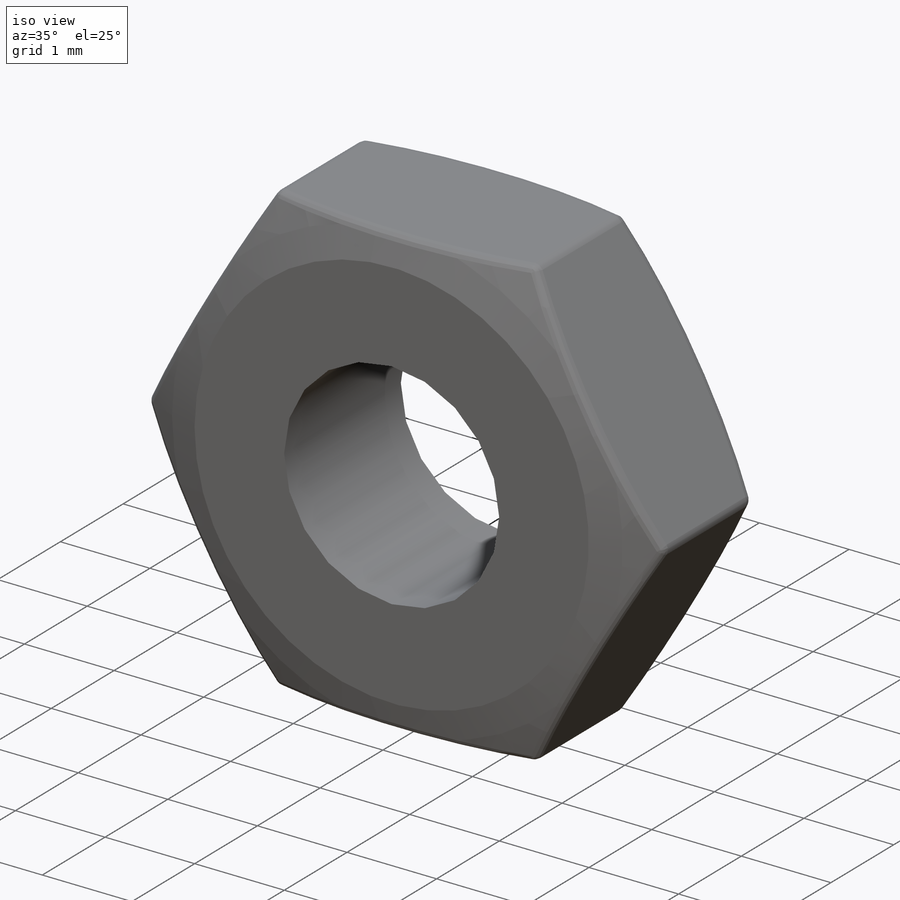
[diagram: iso view]
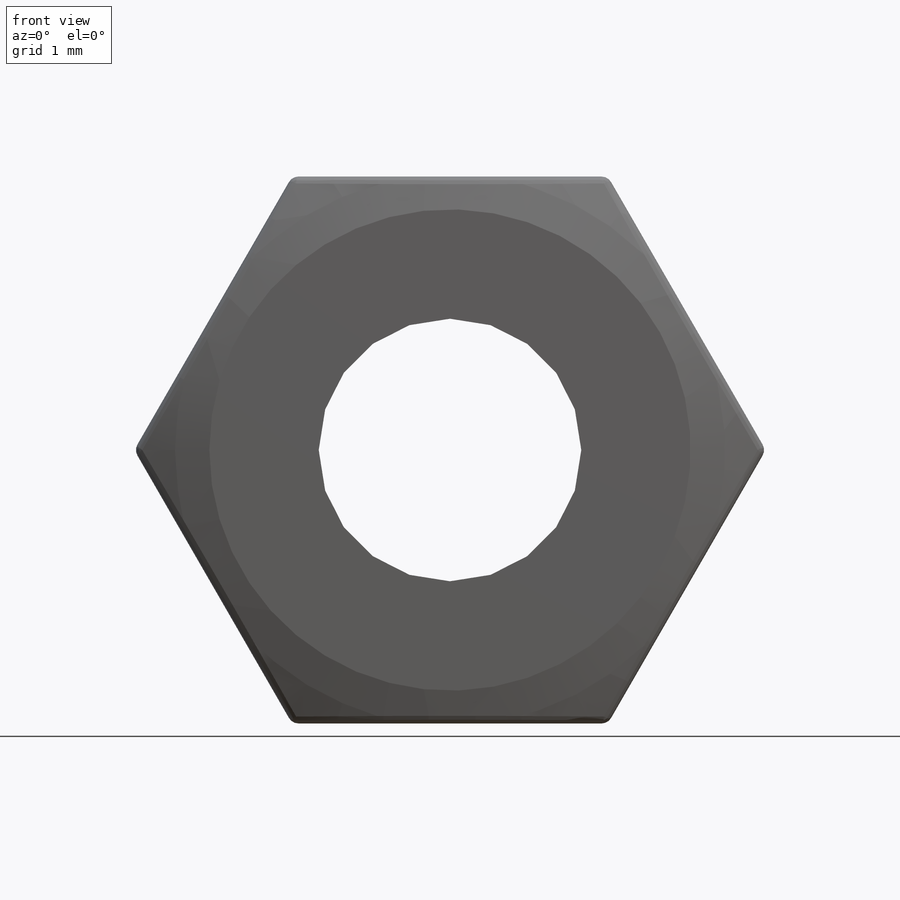
[diagram: front view]
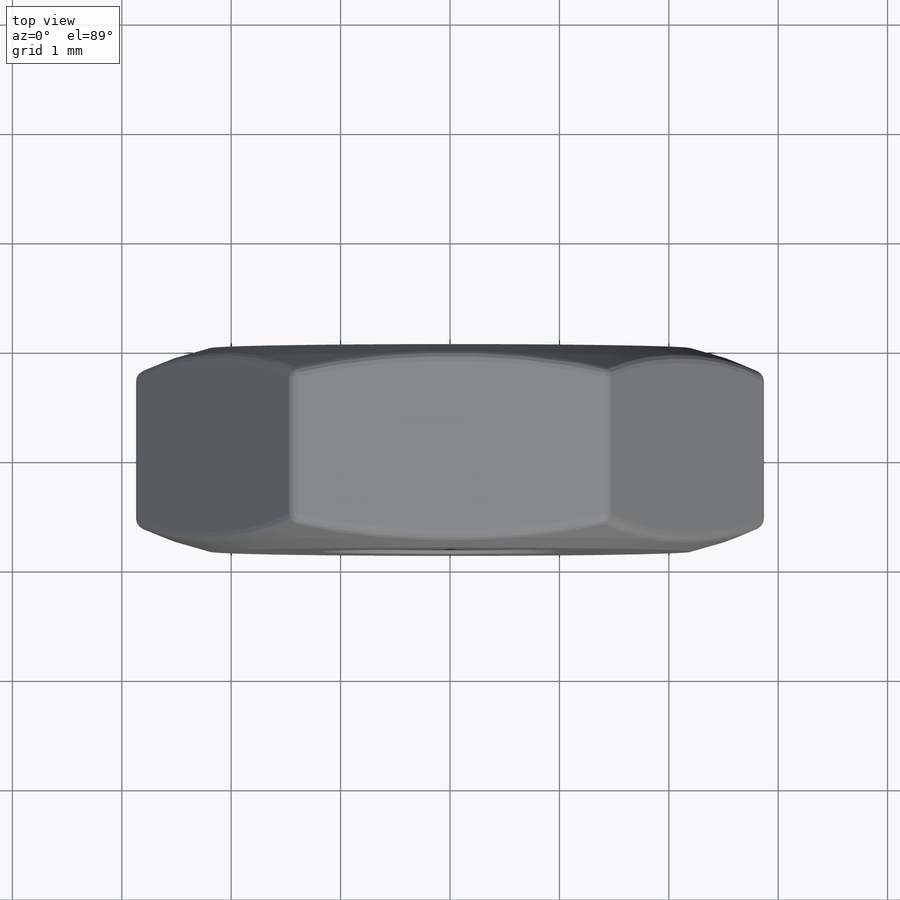
[diagram: top view]
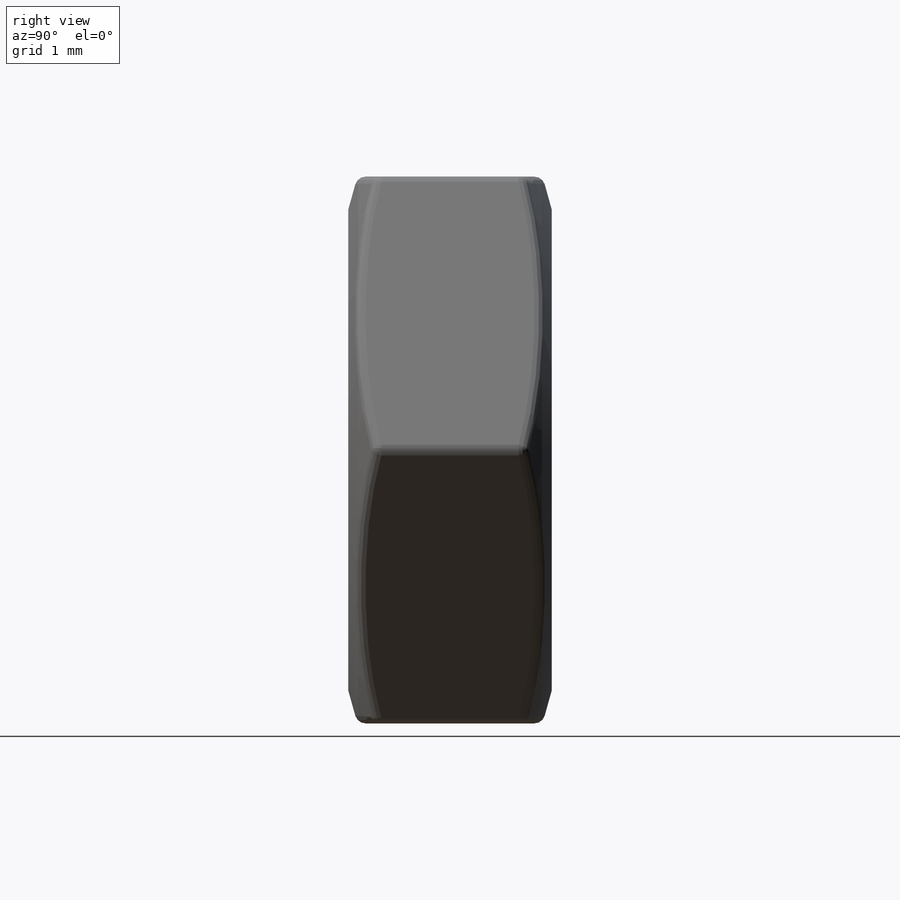
[diagram: right view]
SOLIDWORKS PART (.sldprt)
format: sldprt  version: not decoded by parser v0  size: 296,960 bytes
history: native  units: mm
features: sketch x3, fillet x2, material x1, extrude x1, cut_revolve x1, cut_extrude x1 (+13 scaffold rows collapsed)
feature tree (22):
  scaffold x13  (default folders/planes/origin — collapsed)
  material  "Material <not specified>"
  sketch  "Sketch1"  dims[D1=5.0mm]
  extrude  "Extrude1"  Depth=1.86mm
  sketch  "Sketch2"  dims[c1.D4=3.0mm c1.D5=3.0mm c1.D8=3.0mm c1.D1=2.2mm c1.D2=3.3mm c1.D3=0.5mm c1.D6=2.5mm c2.D5=3.3mm c2.D6=2.2mm c2.D7=0.5mm]
  cut_revolve  "Cut-Revolve1"  Angle=360deg
  sketch  "Sketch3"  dims[D1=2.4mm]
  cut_extrude  "Cut-Extrude1"  Depth=12.5mm
  fillet  "Fillet1"  Radius=0.1mm
  fillet  "Fillet2"  Radius=0.1mm
decode coverage: 8 of 8 modeling features carry decoded parameters
note: suppression state not decoded; provenance and decode notes live in map.json
